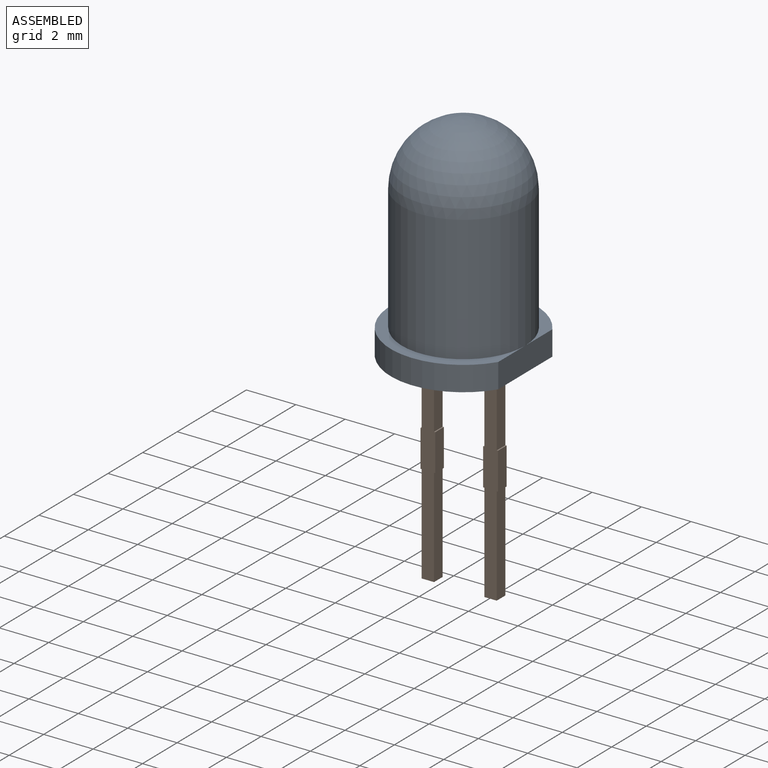
[diagram: assembled view]
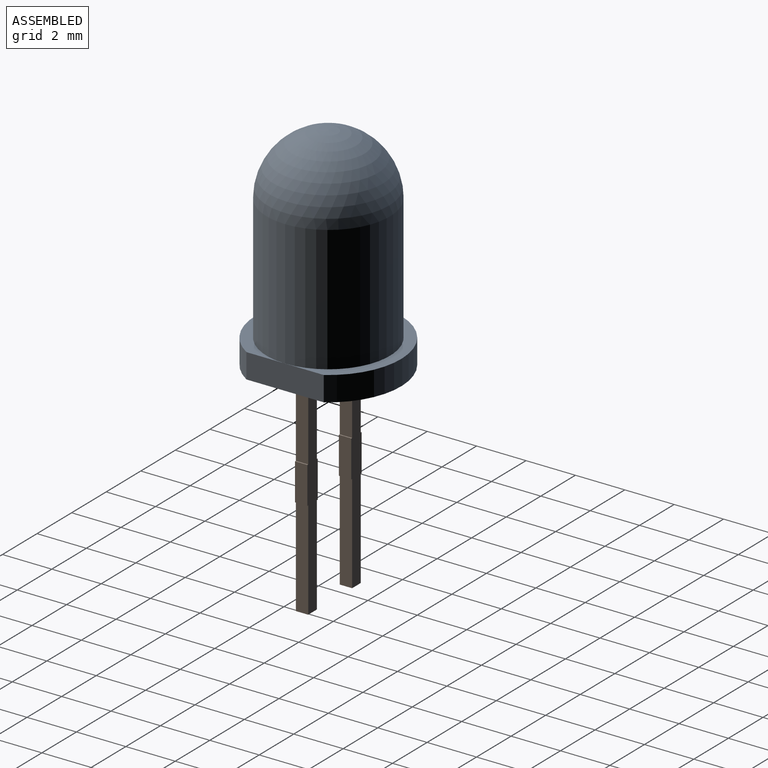
[diagram: assembled view, second angle]
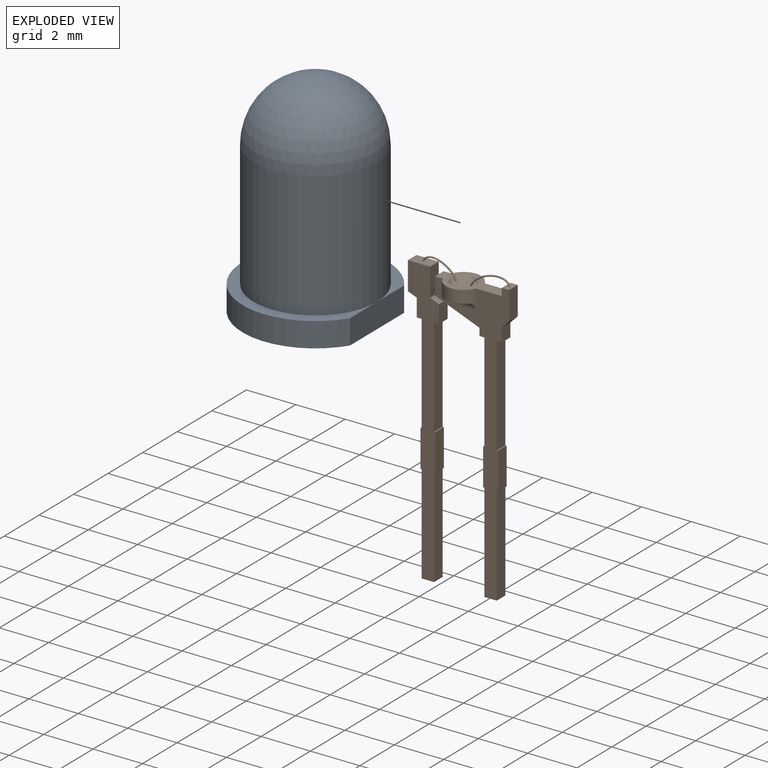
[diagram: exploded view]
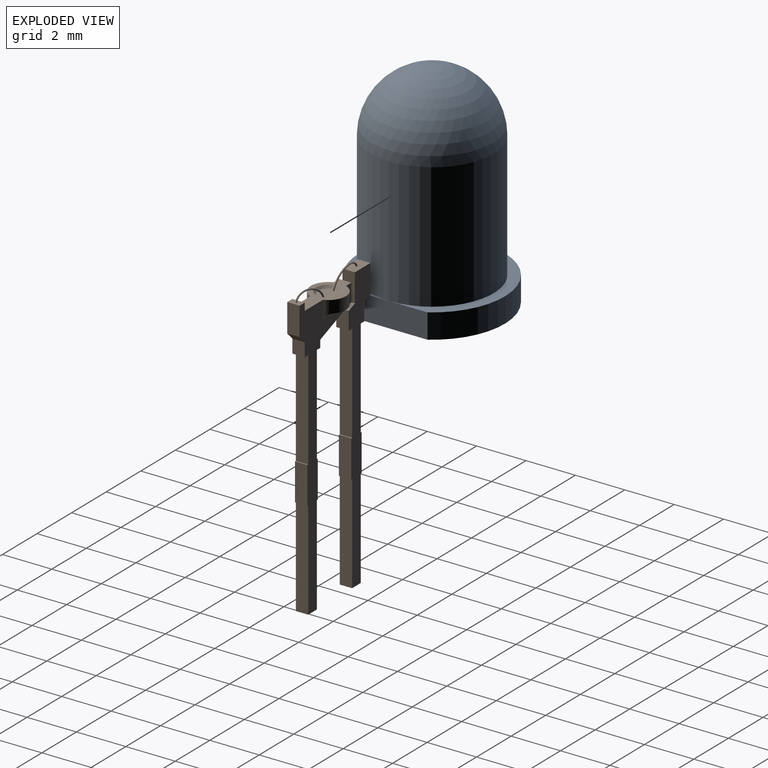
[diagram: exploded view, second angle]
ASSEMBLY  parts=2 mates=3
PART A: 16 faces, bbox 5.5x5.9x8.6 mm
  f0: plane 5.9x5.45mm, normal (0,0,-1), area 25.9mm2, adj f2,f5,f6,f7,f8,f9,f11,f12
  f1: plane 5.9x5.45mm, normal (0,0,1), area 6.7mm2, adj f2,f3,f5
  f2: cylinder r=2.95mm len=5.9mm, axis (0,0,-1), area 15.2mm2, adj f0,f1,f5
  f3: cylinder r=2.5mm len=5.1mm, axis (0,0,-1), area 80.1mm2, adj f1,f4
  f4: sphere r=2.5mm, area 39.3mm2, adj f3
  f5: plane 3.13x1mm, normal (1,0,0), area 3.1mm2, adj f0,f1,f2
  f6: plane 1x0.5mm, normal (-1,0,0), area 0.5mm2, adj f0,f7,f9,f10
  f7: plane 1x0.5mm, normal (0,1,0), area 0.5mm2, adj f0,f6,f8,f10
  f8: plane 1x0.5mm, normal (1,0,0), area 0.5mm2, adj f0,f7,f9,f10
  f9: plane 1x0.5mm, normal (0,-1,0), area 0.5mm2, adj f0,f6,f8,f10
  f10: plane 0.5x0.5mm, normal (0,0,-1), area 0.2mm2, adj f6,f7,f8,f9
  f11: plane 1x0.5mm, normal (1,0,0), area 0.5mm2, adj f0,f12,f14,f15
  f12: plane 1x0.5mm, normal (0,-1,0), area 0.5mm2, adj f0,f11,f13,f15
  f13: plane 1x0.5mm, normal (-1,0,0), area 0.5mm2, adj f0,f12,f14,f15
  f14: plane 1x0.5mm, normal (0,1,0), area 0.5mm2, adj f0,f11,f13,f15
  f15: plane 0.5x0.5mm, normal (0,0,-1), area 0.2mm2, adj f11,f12,f13,f14
PART B: 56 faces, bbox 4.1x1.4x11.8 mm
  f0: plane 4x0.5mm, normal (1,0,0), area 2mm2, adj f1,f21,f22,f23
  f1: plane 0.5x0.2mm, normal (0,0,-1), area 0.1mm2, adj f0,f2,f22,f23
  f2: plane 0.55x0.5mm, normal (1,0,0), area 0.3mm2, adj f1,f3,f22,f23
  f3: plane 0.5x0.3mm, normal (0.71,0,-0.71), area 0.2mm2, adj f2,f4,f22,f23
  f4: plane 1.15x0.5mm, normal (1,0,0), area 0.6mm2, adj f3,f5,f22,f23
  f5: plane 0.51x0.31mm, normal (0,0,1), area 0.1mm2, adj f4,f6,f22,f23,f32
  f6: plane 0.5x0.3mm, normal (-1,0,0), area 0.1mm2, adj f5,f7,f22,f23
  f7: plane 2.7x1.42mm, normal (0,0,1), area 1.4mm2, adj f6,f8,f22,f23,f25,f26,f28
  f8: plane 0.7x0.5mm, normal (-1,0,0), area 0.4mm2, adj f7,f9,f22,f23
  f9: plane 1.8x0.7mm, normal (-0.36,0,-0.93), area 1mm2, adj f8,f10,f22,f23
  f10: plane 0.5x0.3mm, normal (-1,0,0), area 0.1mm2, adj f9,f11,f22,f23
  f11: plane 0.5x0.2mm, normal (0,0,-1), area 0.1mm2, adj f10,f12,f22,f23
  f12: plane 4x0.5mm, normal (-1,0,0), area 2mm2, adj f11,f13,f22,f23
  f13: plane 0.5x0.05mm, normal (0,0,1), area 0mm2, adj f12,f14,f22,f23
  f14: plane 1.5x0.5mm, normal (-1,0,0), area 0.7mm2, adj f13,f15,f22,f23
  f15: plane 0.5x0.05mm, normal (0,0,-1), area 0mm2, adj f14,f16,f22,f23
  f16: plane 4x0.5mm, normal (-1,0,0), area 2mm2, adj f15,f17,f22,f23
  f17: plane 0.5x0.5mm, normal (0,0,-1), area 0.2mm2, adj f16,f18,f22,f23
  f18: plane 4x0.5mm, normal (1,0,0), area 2mm2, adj f17,f19,f22,f23
  f19: plane 0.5x0.05mm, normal (0,0,-1), area 0mm2, adj f18,f20,f22,f23
  f20: plane 1.5x0.5mm, normal (1,0,0), area 0.7mm2, adj f19,f21,f22,f23
  f21: plane 0.5x0.05mm, normal (0,0,1), area 0mm2, adj f0,f20,f22,f23
  f22: plane 11.5x3mm, normal (0,-1,0), area 7.6mm2, adj f0,f1,f2,f3,f4,f5,f6,f7
  f23: plane 11.5x3mm, normal (0,1,0), area 7.6mm2, adj f0,f1,f2,f3,f4,f5,f6,f7
  f24: plane 0.9x0.16mm, normal (0,0,-1), area 0.1mm2, adj f25,f31
  f25: cylinder r=0.71mm len=1.33mm, axis (0,0,1), area 0.9mm2, adj f7,f23,f24,f31
  f26: cylinder r=0.71mm len=1.33mm, axis (0,0,1), area 0.9mm2, adj f7,f22,f27,f30
  f27: plane 0.9x0.16mm, normal (0,0,-1), area 0.1mm2, adj f26,f30
  f28: cone r=0.51mm half-angle=45deg, axis (0,0,1), area 0.4mm2, adj f7,f29
  f29: plane 0.84x0.84mm, normal (0,0,1), area 0.5mm2, adj f28,f32,f55
  f30: cylinder r=0.3mm len=1.33mm, axis (-1,0,0), area 0.6mm2, adj f22,f26,f27
  f31: cylinder r=0.3mm len=1.33mm, axis (1,0,0), area 0.6mm2, adj f23,f24,f25
  f32: bspline ~1.64x0.71mm, area 0.4mm2, adj f5,f29
  f33: plane 4x0.5mm, normal (-1,0,0), area 2mm2, adj f34,f52,f53,f54
  f34: plane 0.5x0.5mm, normal (0,0,-1), area 0.2mm2, adj f33,f35,f53,f54
  f35: plane 4x0.5mm, normal (1,0,0), area 2mm2, adj f34,f36,f53,f54
  f36: plane 0.5x0.05mm, normal (0,0,-1), area 0mm2, adj f35,f37,f53,f54
  f37: plane 1.5x0.5mm, normal (1,0,0), area 0.7mm2, adj f36,f38,f53,f54
  f38: plane 0.5x0.05mm, normal (0,0,1), area 0mm2, adj f37,f39,f53,f54
  f39: plane 4x0.5mm, normal (1,0,0), area 2mm2, adj f38,f40,f53,f54
  f40: plane 0.5x0.2mm, normal (0,0,-1), area 0.1mm2, adj f39,f41,f53,f54
  f41: plane 0.72x0.5mm, normal (1,0,0), area 0.4mm2, adj f40,f42,f53,f54
  f42: plane 0.5x0.36mm, normal (0.36,0,0.93), area 0.2mm2, adj f41,f43,f53,f54
  f43: plane 1.14x0.5mm, normal (1,0,0), area 0.6mm2, adj f42,f44,f53,f54
  f44: plane 0.92x0.52mm, normal (0,0,1), area 0.4mm2, adj f43,f45,f53,f54,f55
  f45: plane 1.14x0.5mm, normal (-1,0,0), area 0.6mm2, adj f44,f46,f53,f54
  f46: plane 0.5x0.36mm, normal (-0.36,0,-0.93), area 0.2mm2, adj f45,f47,f53,f54
  f47: plane 0.72x0.5mm, normal (-1,0,0), area 0.4mm2, adj f46,f48,f53,f54
  f48: plane 0.5x0.2mm, normal (0,0,-1), area 0.1mm2, adj f47,f49,f53,f54
  f49: plane 4x0.5mm, normal (-1,0,0), area 2mm2, adj f48,f50,f53,f54
  f50: plane 0.5x0.05mm, normal (0,0,1), area 0mm2, adj f49,f51,f53,f54
  f51: plane 1.5x0.5mm, normal (-1,0,0), area 0.7mm2, adj f50,f52,f53,f54
  f52: plane 0.5x0.05mm, normal (0,0,-1), area 0mm2, adj f33,f51,f53,f54
  f53: plane 11.5x1.26mm, normal (0,-1,0), area 6.7mm2, adj f33,f34,f35,f36,f37,f38,f39,f40
  f54: plane 11.5x1.26mm, normal (0,1,0), area 6.7mm2, adj f33,f34,f35,f36,f37,f38,f39,f40
  f55: bspline ~1.41x0.7mm, area 0.4mm2, adj f29,f44
PLACE A at identity fixed
PLACE B at identity
MATE planar B.f1 <-> A.f15  axis (0,0,-1) through (1.62,0,1)mm
MATE planar B.f22 <-> A.f7  axis (0,-1,0) through (1.02,-0.25,-3)mm
MATE planar B.f0 <-> A.f6  axis (1,0,0) through (1.52,0,-1)mm
